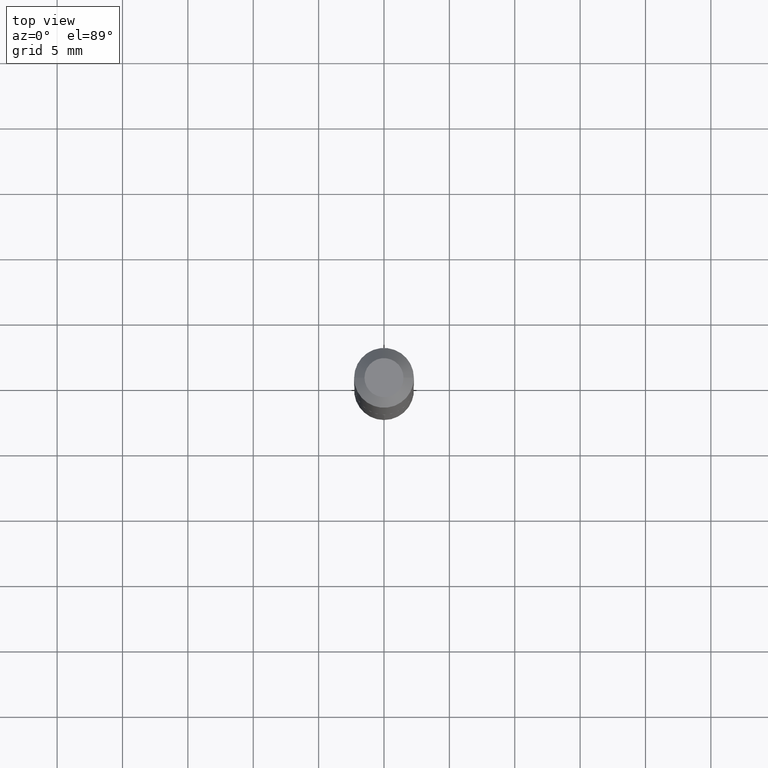
[diagram: clean part render]
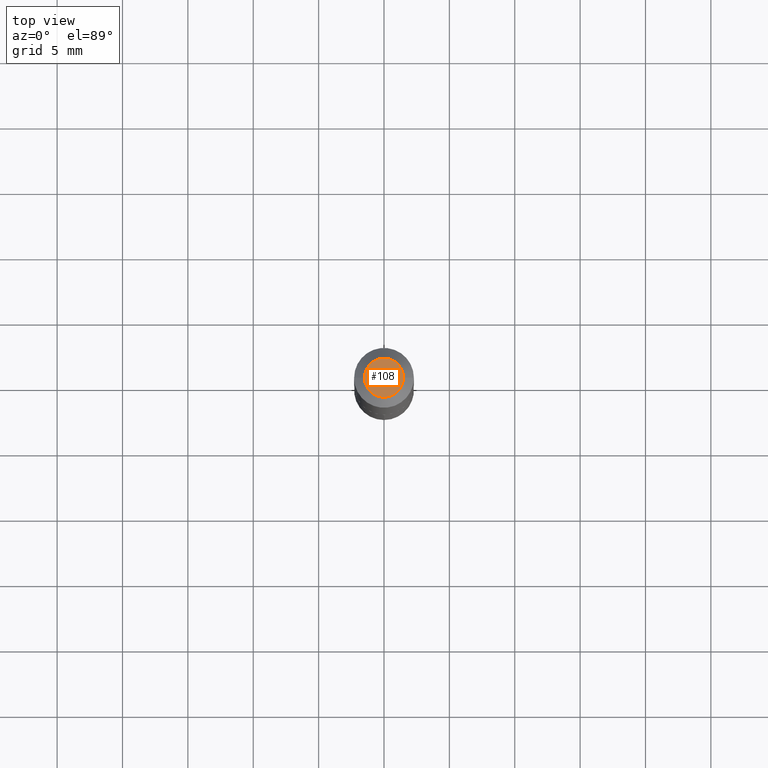
[diagram: same view with one face highlighted and labeled with its STEP entity id]
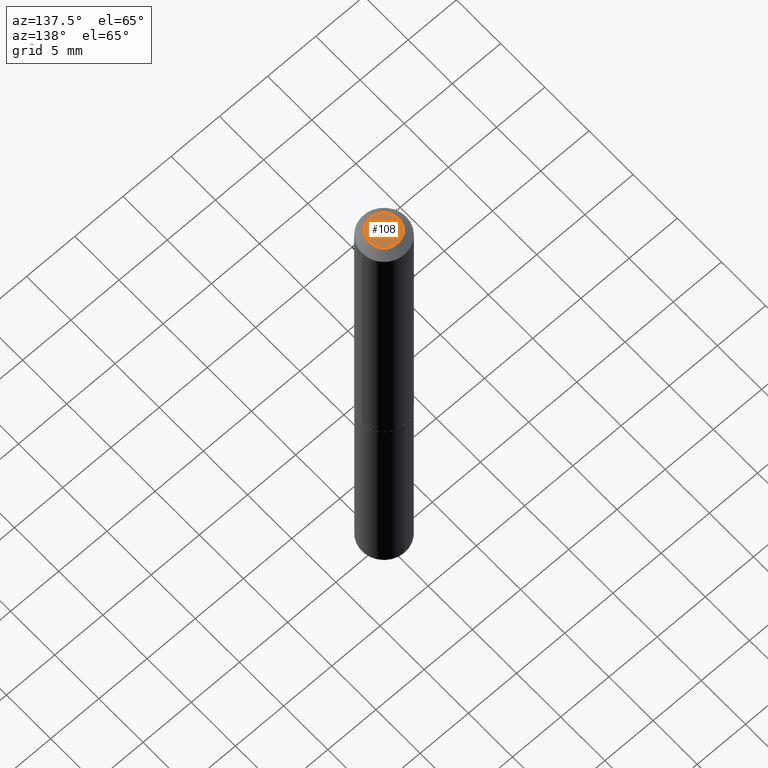
[diagram: same view with one face highlighted and labeled with its STEP entity id]
A machine part, top view. The second image highlights one B-rep face of the part: STEP entity #108.
A second angle (auxiliary view) of the same face is appended — the face is thin or edge-on in the first view.
In plain terms, the highlighted planar face has unit normal (0, -0, -1).
Its self-contained STEP definition (entity closure, byte-faithful):
#3 = CARTESIAN_POINT ( 'NONE',  ( 2.994835545909338206E-48, -4.275831445896990567E-34, -1.224646799147357958E-19 ) ) ;
#49 = PLANE ( 'NONE',  #132 ) ;
#54 = DIRECTION ( 'NONE',  ( -1.000000000000000000, 6.982962677686265922E-15, -4.876176775795935793E-29 ) ) ;
#86 = AXIS2_PLACEMENT_3D ( 'NONE', #374, #100, #224 ) ;
#100 = DIRECTION ( 'NONE',  ( -2.445468806185136597E-29, 3.491481338843145583E-15, 1.000000000000000000 ) ) ;
#104 = CARTESIAN_POINT ( 'NONE',  ( 0.05874999999999999667, -5.648039345036820564E-16, -1.224646799113270924E-19 ) ) ;
#108 = ADVANCED_FACE ( 'NONE', ( #214 ), #49, .F. ) ;
#130 = EDGE_CURVE ( 'NONE', #319, #289, #315, .T. ) ;
#132 = AXIS2_PLACEMENT_3D ( 'NONE', #324, #328, #54 ) ;
#140 = ORIENTED_EDGE ( 'NONE', *, *, #288, .T. ) ;
#193 = ORIENTED_EDGE ( 'NONE', *, *, #130, .T. ) ;
#214 = FACE_OUTER_BOUND ( 'NONE', #231, .T. ) ;
#224 = DIRECTION ( 'NONE',  ( 1.000000000000000000, -6.982962677686267499E-15, 4.876179797471253707E-29 ) ) ;
#231 = EDGE_LOOP ( 'NONE', ( #140, #193 ) ) ;
#265 = CIRCLE ( 'NONE', #86, 0.05874999999999999667 ) ;
#288 = EDGE_CURVE ( 'NONE', #289, #319, #265, .T. ) ;
#289 = VERTEX_POINT ( 'NONE', #311 ) ;
#311 = CARTESIAN_POINT ( 'NONE',  ( -0.05874999999999999667, 4.648034532334915954E-16, -1.224646799177953522E-19 ) ) ;
#315 = CIRCLE ( 'NONE', #348, 0.05874999999999999667 ) ;
#319 = VERTEX_POINT ( 'NONE', #104 ) ;
#324 = CARTESIAN_POINT ( 'NONE',  ( 1.497417772954669103E-48, -2.137915722948495283E-34, -6.123233995736789792E-20 ) ) ;
#328 = DIRECTION ( 'NONE',  ( 2.438088387897960049E-29, -3.491481338843145188E-15, -1.000000000000000000 ) ) ;
#348 = AXIS2_PLACEMENT_3D ( 'NONE', #3, #368, #375 ) ;
#368 = DIRECTION ( 'NONE',  ( -2.445468806185136597E-29, 3.491481338843145583E-15, 1.000000000000000000 ) ) ;
#374 = CARTESIAN_POINT ( 'NONE',  ( 2.994835545909338206E-48, -4.275831445896990567E-34, -1.224646799147357958E-19 ) ) ;
#375 = DIRECTION ( 'NONE',  ( 1.000000000000000000, -6.982962677686267499E-15, 4.876179797471253707E-29 ) ) ;